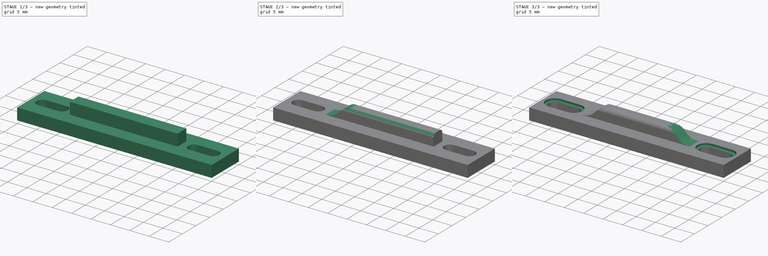
[diagram: build sequence overview — one tinted view per stage of 3, left to right]
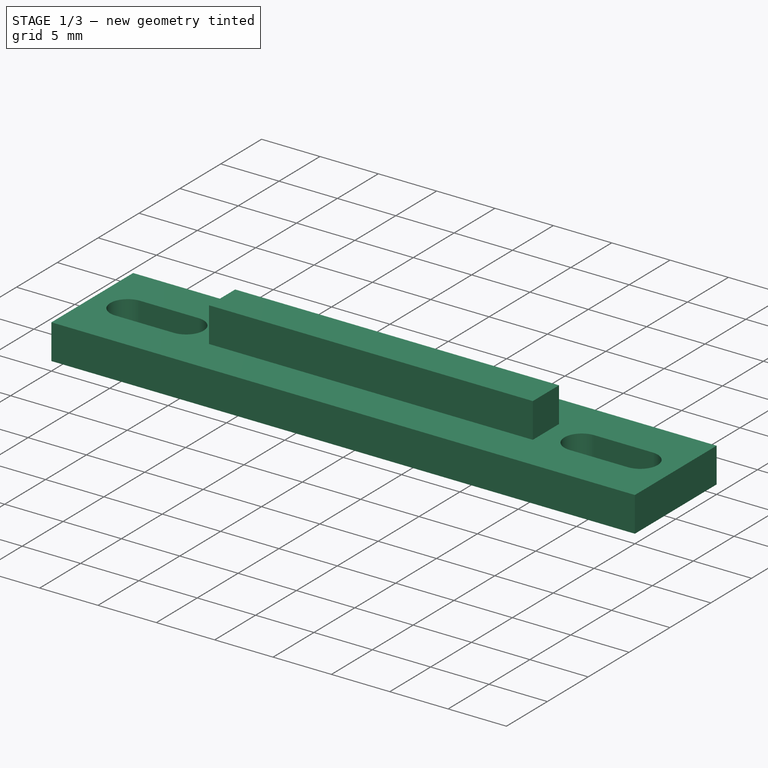
[diagram: stage 1 of 3 — iso view after this stage's code; geometry added in this stage tinted green]
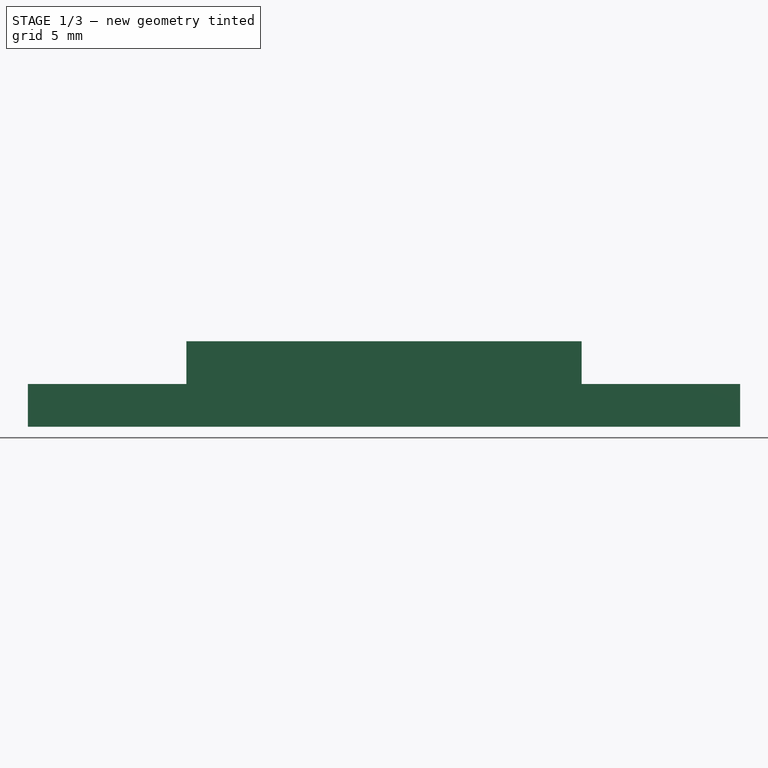
[diagram: stage 1 of 3 — front view after this stage's code; geometry added in this stage tinted green]
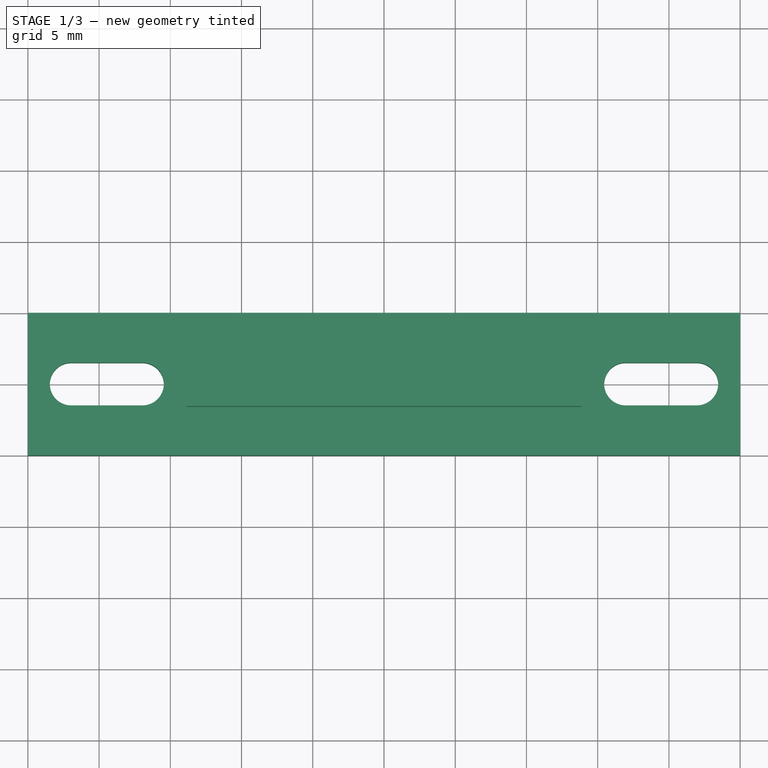
[diagram: stage 1 of 3 — top view after this stage's code; geometry added in this stage tinted green]
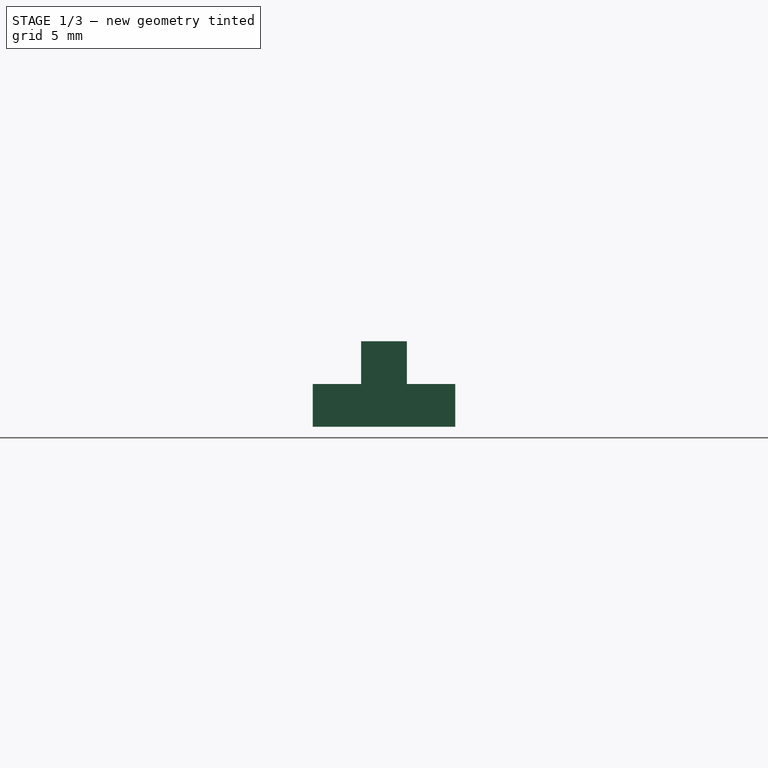
[diagram: stage 1 of 3 — right view after this stage's code; geometry added in this stage tinted green]
FCSTD DOCUMENT  (FreeCAD 0.18R16131 (Git))
Label: matrixCentre
License: All rights reserved
LicenseURL: http://en.wikipedia.org/wiki/All_rights_reserved
objects: Sketcher::SketchObject×4, PartDesign::Plane×3, PartDesign::Pad×2, PartDesign::Pocket×2, PartDesign::Fillet×2, PartDesign::Mirrored×1, PartDesign::Body×1, App::DocumentObjectGroup×1
note: 19 computed .brp shape members not serialized (recipe doc carries the construction recipe); baked Part::Feature solids carry a one-line shape summary decoded from their .brp

FEATURE [Sketcher::SketchObject] Sketch
  MapMode = 5
  Support = -> [XY_Plane]
  sketch-geometry (12):
    g0: LineSegment StartX=-25 StartY=5 StartZ=0 EndX=25 EndY=5 EndZ=0
    g1: LineSegment StartX=25 StartY=5 StartZ=0 EndX=25 EndY=-5 EndZ=0
    g2: LineSegment StartX=25 StartY=-5 StartZ=0 EndX=-25 EndY=-5 EndZ=0
    g3: LineSegment StartX=-25 StartY=-5 StartZ=0 EndX=-25 EndY=5 EndZ=0
    g4: ArcOfCircle CenterX=-21.9569 CenterY=0 CenterZ=0 NormalX=0 NormalY=0 NormalZ=1 AngleXU=0 Radius=1.5 StartAngle=1.5708 EndAngle=4.71239
    g5: ArcOfCircle CenterX=-16.9569 CenterY=-1e-16 CenterZ=0 NormalX=0 NormalY=0 NormalZ=1 AngleXU=0 Radius=1.5 StartAngle=4.71239 EndAngle=7.85398
    g6: LineSegment StartX=-21.9569 StartY=-1.5 StartZ=0 EndX=-16.9569 EndY=-1.5 EndZ=0
    g7: LineSegment StartX=-21.9569 StartY=1.5 StartZ=0 EndX=-16.9569 EndY=1.5 EndZ=0
    g8: LineSegment StartX=16.9569 StartY=1.5 StartZ=0 EndX=21.9569 EndY=1.5 EndZ=0
    g9: ArcOfCircle CenterX=16.9569 CenterY=0 CenterZ=0 NormalX=0 NormalY=0 NormalZ=1 AngleXU=0 Radius=1.5 StartAngle=1.5708 EndAngle=4.71239
    g10: LineSegment StartX=16.9569 StartY=-1.5 StartZ=0 EndX=21.9569 EndY=-1.5 EndZ=0
    g11: ArcOfCircle CenterX=21.9569 CenterY=0 CenterZ=0 NormalX=0 NormalY=0 NormalZ=1 AngleXU=0 Radius=1.5 StartAngle=4.71239 EndAngle=7.85398
  constraints (28):
    c: Coincident(g0,g1)
    c: Coincident(g1,g2)
    c: Coincident(g2,g3)
    c: Coincident(g3,g0)
    c: Horizontal(g2)
    c: Vertical(g1)
    c: DistanceX(g0,g0) = 50
    c: DistanceY(g3,g3) = 10
    c: Symmetric(g0,g0,g-2)
    c: Symmetric(g0,g2,g-1)
    c: Tangent(g4,g7) = 1.5708
    c: Tangent(g4,g6) = -1.5708
    c: Tangent(g6,g5) = -1.5708
    c: Tangent(g7,g5) = 1.5708
    c: Horizontal(g6)
    c: Equal(g4,g5)
    c: PointOnObject(g4,g-1)
    c: Diameter(g5) = 3
    c: DistanceX(g6,g6) = 5
    c: Tangent(g9,g8) = 1.5708
    c: Tangent(g9,g10) = -1.5708
    c: Tangent(g10,g11) = -1.5708
    c: Tangent(g8,g11) = 1.5708
    c: Horizontal(g10)
    c: Equal(g9,g11)
    c: Equal(g5,g11) = 3
    c: Equal(g6,g10) = 5
    c: Symmetric(g5,g9,g-2)
FEATURE [PartDesign::Pad] Pad
  Length = 3
  Length2 = 100
  Profile = -> Sketch
  Type = 0
FEATURE [PartDesign::Plane] DatumPlane
  Length = 56.3246
  MapMode = 5
  Placement = pos=(0,0,3) rot=(0,0,1;0rad)
  ResizeMode = 0
  Support = -> [Pad]
  Width = 26.3246
FEATURE [Sketcher::SketchObject] Sketch001
  MapMode = 5
  Placement = pos=(0,0,3) rot=(0,0,1;0rad)
  Support = -> [DatumPlane]
  sketch-geometry (4):
    g0: LineSegment StartX=-13.8743 StartY=-1.60169 StartZ=0 EndX=13.8743 EndY=-1.60169 EndZ=0
    g1: LineSegment StartX=-13.8743 StartY=1.60169 StartZ=0 EndX=13.8743 EndY=1.60169 EndZ=0
    g2: LineSegment StartX=-13.8743 StartY=1.60169 StartZ=0 EndX=-13.8743 EndY=-1.60169 EndZ=0
    g3: LineSegment StartX=13.8743 StartY=1.60169 StartZ=0 EndX=13.8743 EndY=-1.60169 EndZ=0
  constraints (8):
    c: Coincident(g2,g1)
    c: Coincident(g2,g0)
    c: Coincident(g3,g1)
    c: Coincident(g3,g0)
    c: Vertical(g3)
    c: Symmetric(g1,g0,g-1)
    c: Symmetric(g0,g0,g-2)
    c: Horizontal(g1)
FEATURE [PartDesign::Pad] Pad001
  BaseFeature = -> Pad
  Length = 3
  Length2 = 100
  Profile = -> Sketch001
  Type = 0
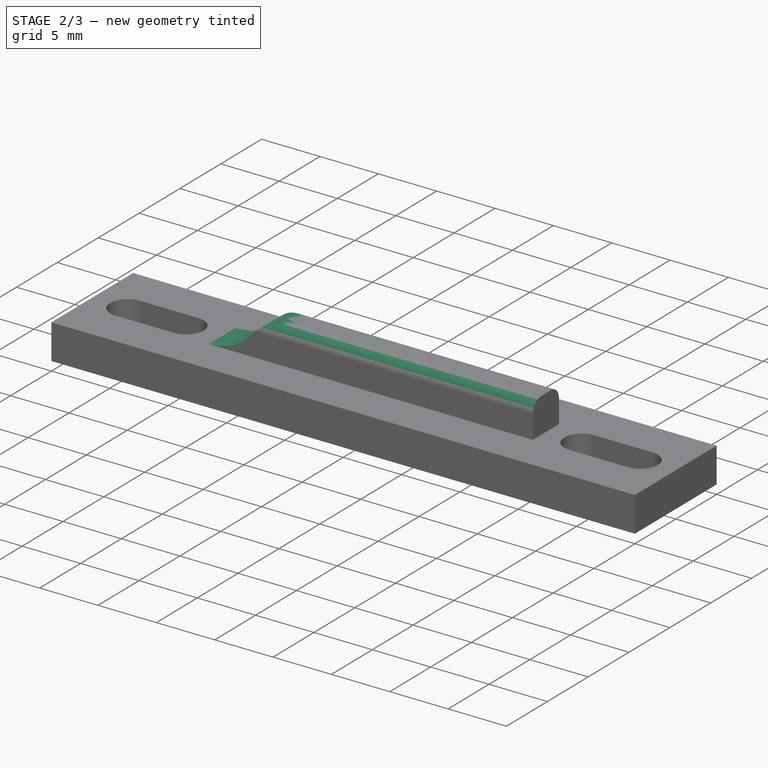
[diagram: stage 2 of 3 — iso view after this stage's code; geometry added in this stage tinted green]
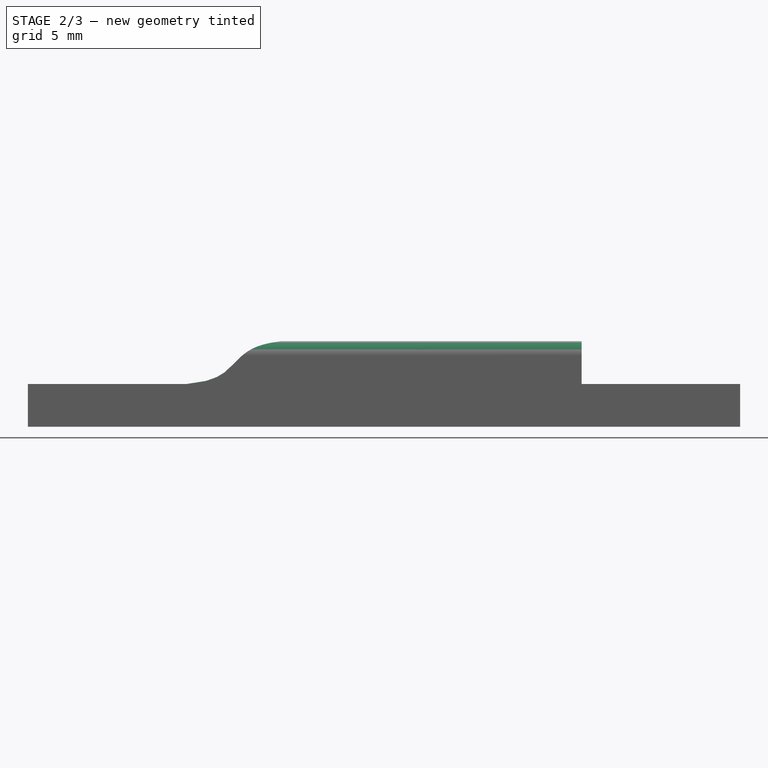
[diagram: stage 2 of 3 — front view after this stage's code; geometry added in this stage tinted green]
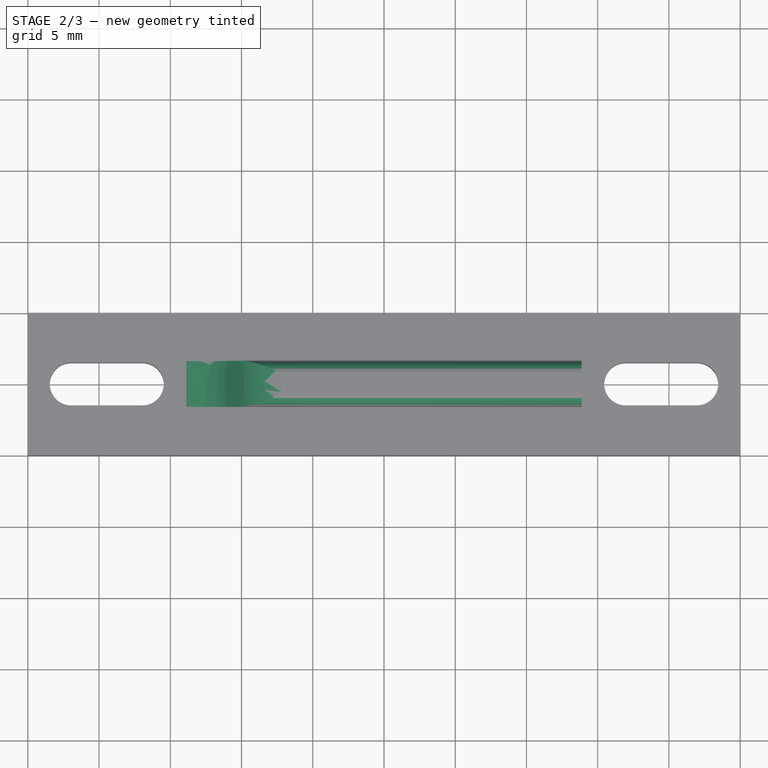
[diagram: stage 2 of 3 — top view after this stage's code; geometry added in this stage tinted green]
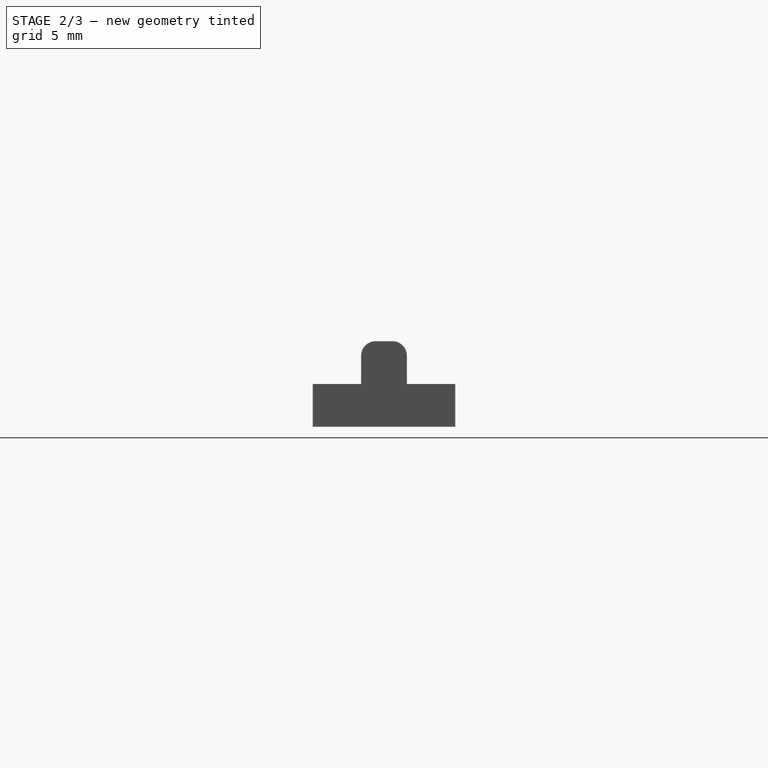
[diagram: stage 2 of 3 — right view after this stage's code; geometry added in this stage tinted green]
FEATURE [PartDesign::Plane] DatumPlane001
  Length = 56.3246
  MapMode = 5
  Placement = pos=(0,-1.60169,0) rot=(1,0,0;1.5708rad)
  ResizeMode = 0
  Support = -> [Pad001]
  Width = 26.3246
FEATURE [Sketcher::SketchObject] Sketch002
  ExternalGeometry = -> [Pad001]
  MapMode = 5
  Placement = pos=(0,-1.60169,0) rot=(1,0,0;1.5708rad)
  Support = -> [DatumPlane001]
  sketch-geometry (11):
    g0-g3: Circle [constr] x4 (B-spline internal-alignment scaffolding for g4; pole/knot coordinates omitted)
    g4: BSplineCurve PolesCount=4 KnotsCount=2 Degree=3 IsPeriodic=0
    g5: GeomPoint [constr] X=-13.8743 Y=3 Z=0
    g6: GeomPoint [constr] X=-7.21627 Y=6 Z=0
    g7: LineSegment StartX=-7.21627 StartY=6 StartZ=0 EndX=-7.21627 EndY=6.38382 EndZ=0
    g8: LineSegment StartX=-14.2227 StartY=6.33639 StartZ=0 EndX=-14.2227 EndY=3.3646 EndZ=0
    g9: LineSegment StartX=-14.2227 StartY=6.33639 StartZ=0 EndX=-7.21627 EndY=6.38382 EndZ=0
    g10: LineSegment StartX=-13.8743 StartY=3 StartZ=0 EndX=-14.2227 EndY=3.3646 EndZ=0
  constraints (16):
    c: Coincident(g4,g-3)
    c: Radius(g0) = 0.3
    c: Equal(g0,g1)
    c: Equal(g0,g2)
    c: Equal(g0,g3)
    c: PointOnObject(g4,g-4)
    c: InternalAlignment(g0-g3 -> g4) x4
    c: InternalAlignment(g5,g4)
    c: InternalAlignment(g6,g4)
    c: Coincident(g7,g4)
    c: Vertical(g7)
    c: Vertical(g8)
    c: Coincident(g9,g8)
    c: Coincident(g10,g4)
    c: Coincident(g10,g8)
    c: Coincident(g7,g9)
FEATURE [PartDesign::Pocket] Pocket
  BaseFeature = -> Pad001
  Length = 3.5
  Length2 = 100
  Profile = -> Sketch002
  Type = 0
FEATURE [PartDesign::Fillet] Fillet
  Base = -> Pocket [Edge49]
  BaseFeature = -> Pocket
  Radius = 1
FEATURE [PartDesign::Fillet] Fillet001
  Base = -> Fillet [Edge27]
  BaseFeature = -> Fillet
  Radius = 1
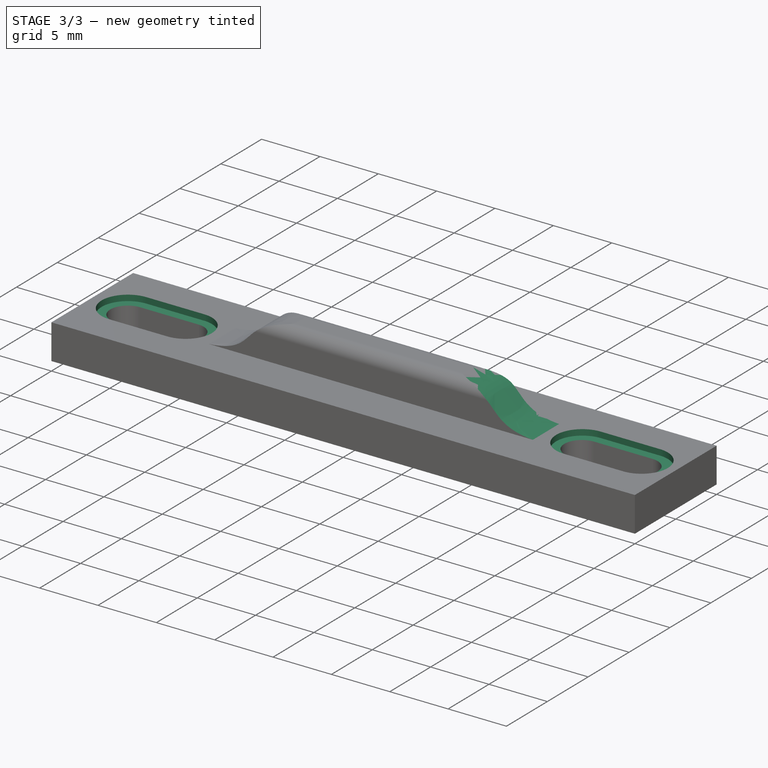
[diagram: stage 3 of 3 — iso view after this stage's code; geometry added in this stage tinted green]
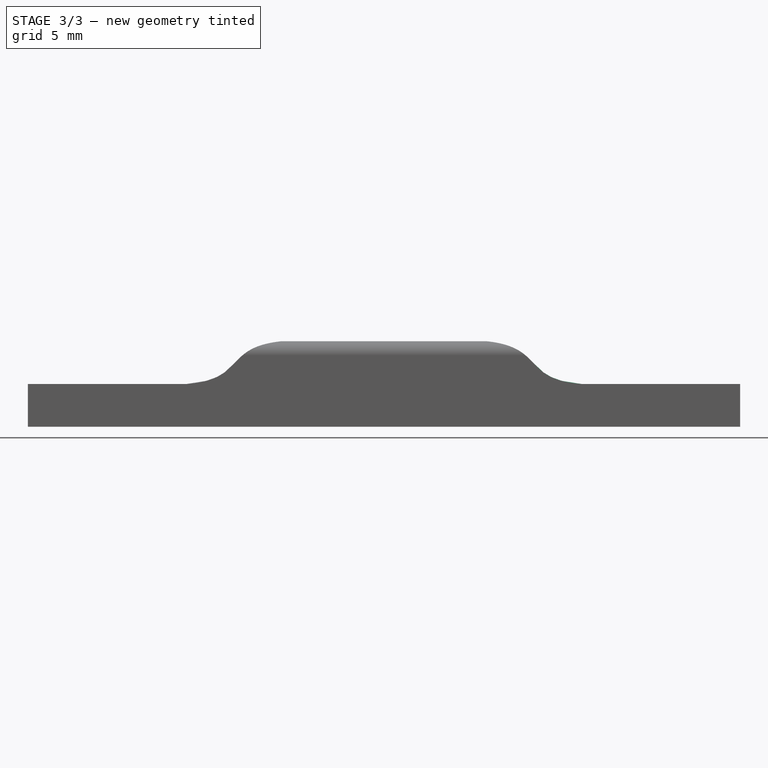
[diagram: stage 3 of 3 — front view after this stage's code; geometry added in this stage tinted green]
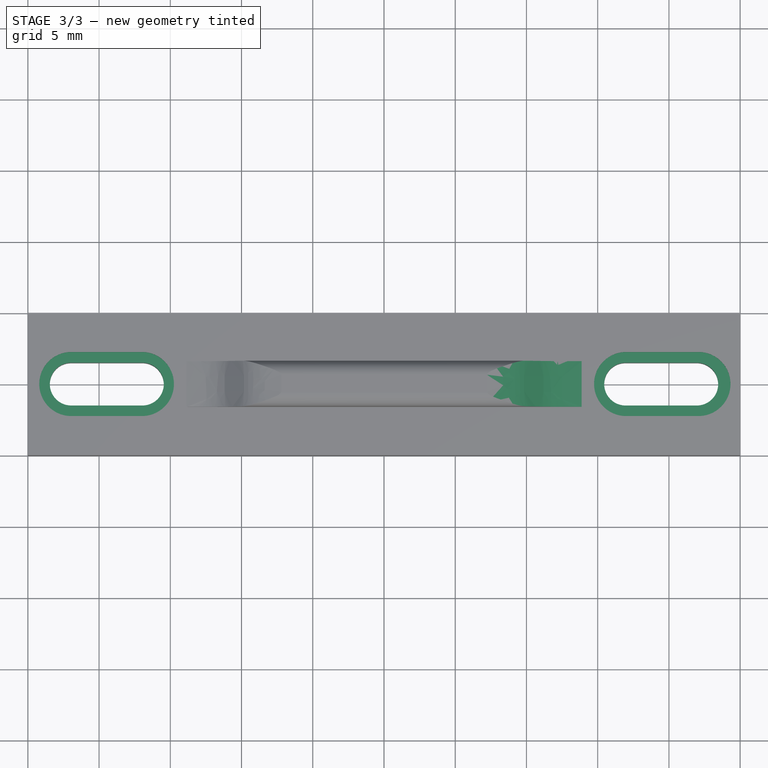
[diagram: stage 3 of 3 — top view after this stage's code; geometry added in this stage tinted green]
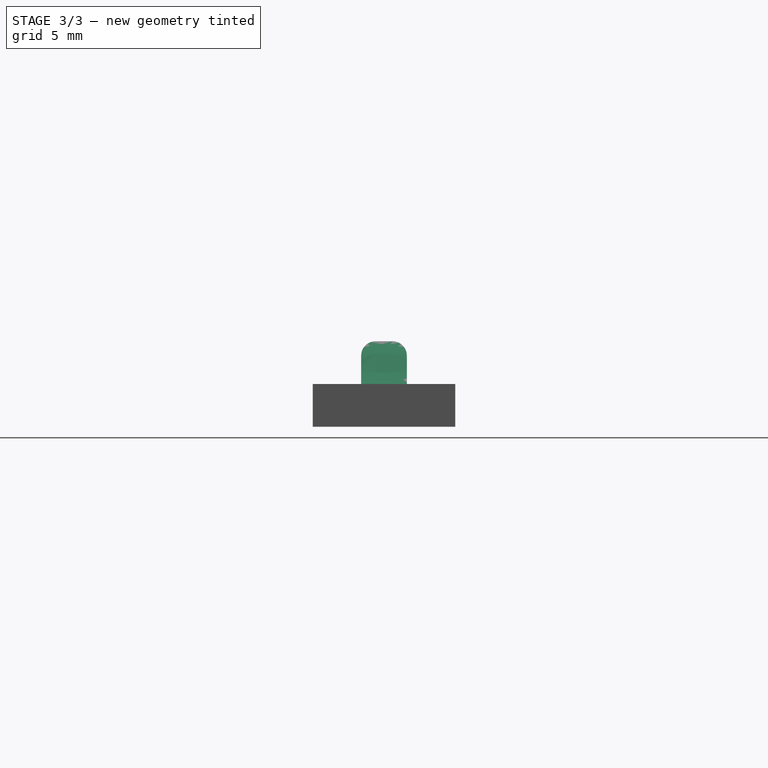
[diagram: stage 3 of 3 — right view after this stage's code; geometry added in this stage tinted green]
FEATURE [PartDesign::Mirrored] Mirrored
  BaseFeature = -> Fillet001
  MirrorPlane = -> Sketch002 [V_Axis]
  Originals = -> [Pocket]
FEATURE [PartDesign::Plane] DatumPlane002
  Length = 56.3246
  MapMode = 5
  Placement = pos=(0,0,3) rot=(0,0,1;0rad)
  ResizeMode = 0
  Support = -> [Mirrored]
  Width = 26.3246
FEATURE [Sketcher::SketchObject] Sketch003
  MapMode = 5
  Placement = pos=(0,0,3) rot=(0,0,1;0rad)
  Support = -> [DatumPlane002]
  sketch-geometry (8):
    g0: ArcOfCircle CenterX=-21.9489 CenterY=0 CenterZ=0 NormalX=0 NormalY=0 NormalZ=1 AngleXU=0 Radius=2.25 StartAngle=1.5708 EndAngle=4.71239
    g1: ArcOfCircle CenterX=-16.996 CenterY=2e-16 CenterZ=0 NormalX=0 NormalY=0 NormalZ=1 AngleXU=0 Radius=2.25 StartAngle=4.71239 EndAngle=7.85398
    g2: LineSegment StartX=-21.9489 StartY=-2.25 StartZ=0 EndX=-16.996 EndY=-2.25 EndZ=0
    g3: LineSegment StartX=-21.9489 StartY=2.25 StartZ=0 EndX=-16.996 EndY=2.25 EndZ=0
    g4: ArcOfCircle CenterX=16.996 CenterY=2e-16 CenterZ=0 NormalX=0 NormalY=0 NormalZ=1 AngleXU=0 Radius=2.25 StartAngle=1.5708 EndAngle=4.71239
    g5: LineSegment StartX=16.996 StartY=2.25 StartZ=0 EndX=22.0717 EndY=2.25 EndZ=0
    g6: ArcOfCircle CenterX=22.0717 CenterY=0 CenterZ=0 NormalX=0 NormalY=0 NormalZ=1 AngleXU=0 Radius=2.25 StartAngle=4.71239 EndAngle=7.85398
    g7: LineSegment StartX=16.996 StartY=-2.25 StartZ=0 EndX=22.0717 EndY=-2.25 EndZ=0
  constraints (16):
    c: Tangent(g0,g3) = 1.5708
    c: Tangent(g0,g2) = -1.5708
    c: Tangent(g2,g1) = -1.5708
    c: Tangent(g3,g1) = 1.5708
    c: Horizontal(g2)
    c: Equal(g0,g1)
    c: PointOnObject(g0,g-1)
    c: DistanceY(g0,g0) = 4.5
    c: Tangent(g4,g5) = 1.5708
    c: Tangent(g4,g7) = -1.5708
    c: Tangent(g7,g6) = -1.5708
    c: Tangent(g5,g6) = 1.5708
    c: Horizontal(g7)
    c: Equal(g4,g6)
    c: Equal(g0,g4) = 4.5
    c: Symmetric(g4,g1,g-2)
FEATURE [PartDesign::Pocket] Pocket001
  BaseFeature = -> Mirrored
  Length = 0.5
  Length2 = 100
  Profile = -> Sketch003
  Type = 0
FEATURE [PartDesign::Body] Body
  Group = -> [Sketch,Pad,DatumPlane,Sketch001,Pad001,DatumPlane001,Sketch002,Pocket,Fillet,Fillet001,Mirrored,DatumPlane002,Sketch003,Pocket001]
  Origin = -> Origin
  Tip = -> Pocket001
FEATURE [App::DocumentObjectGroup] Group  label="trou"
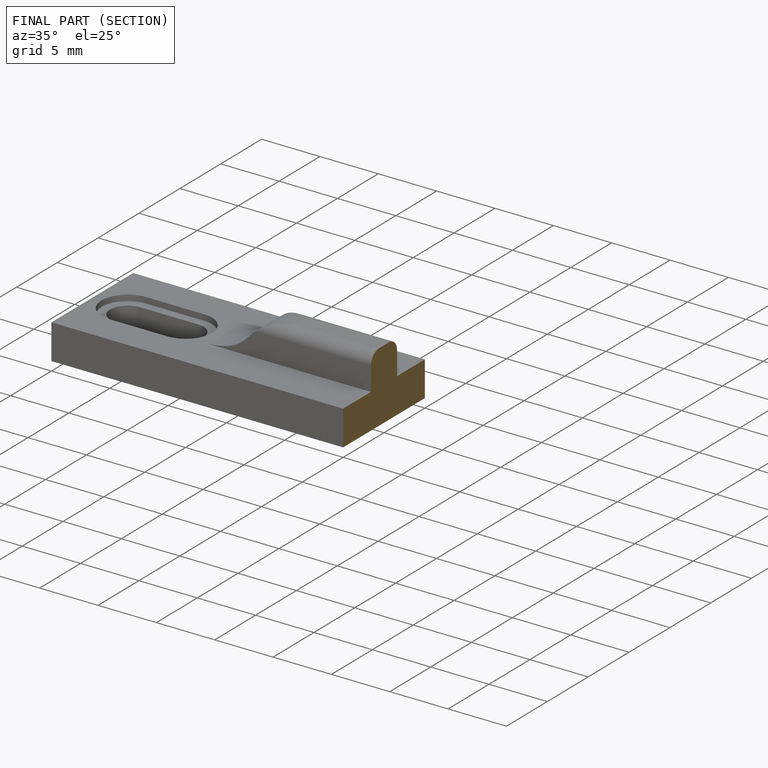
[diagram: finished part — half-section view (interior)]
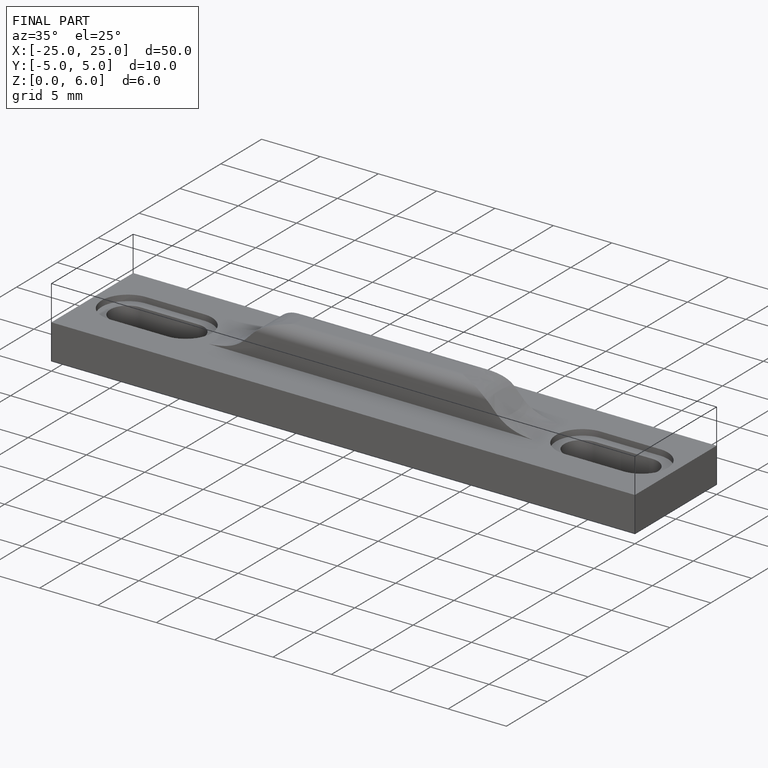
[diagram: finished part — iso view with bounding-box wireframe]
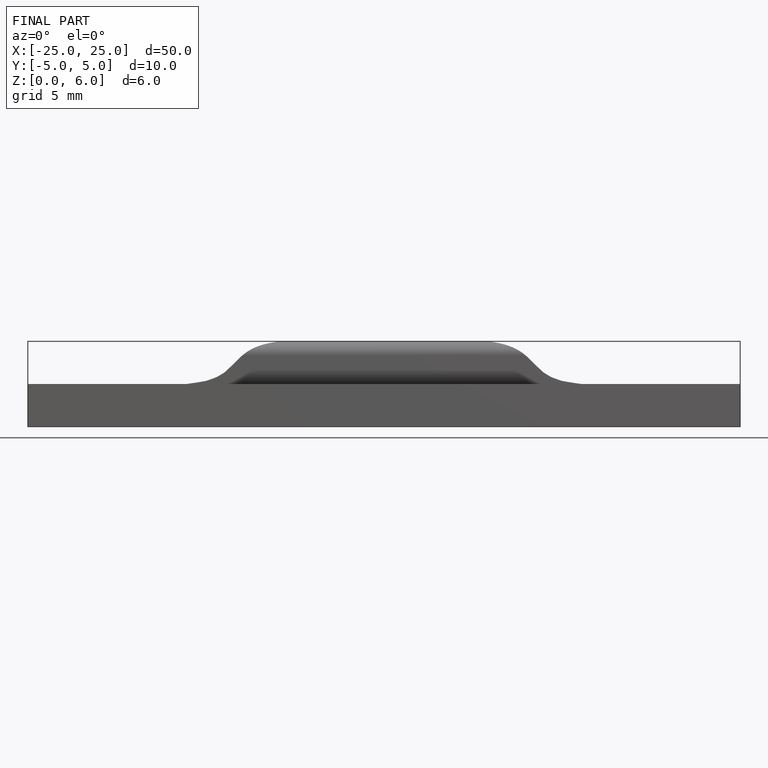
[diagram: finished part — front view with bounding-box wireframe]
